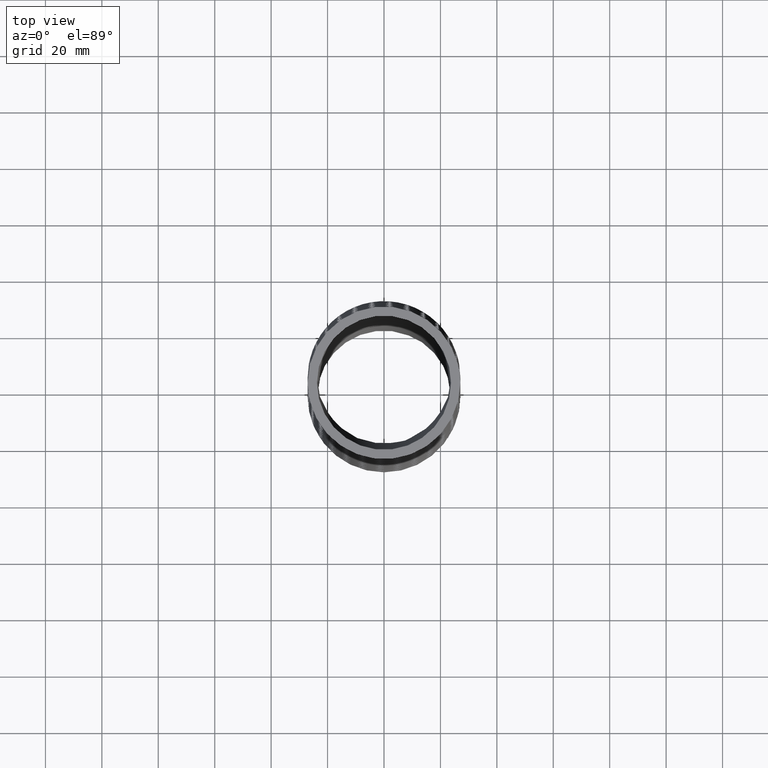
[diagram: clean part render]
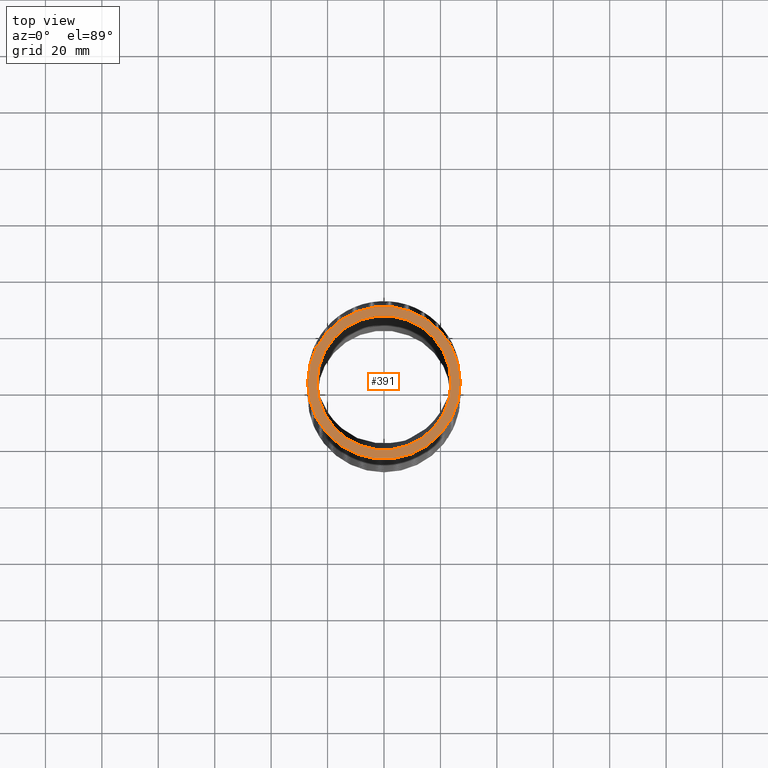
[diagram: same view with one face highlighted and labeled with its STEP entity id]
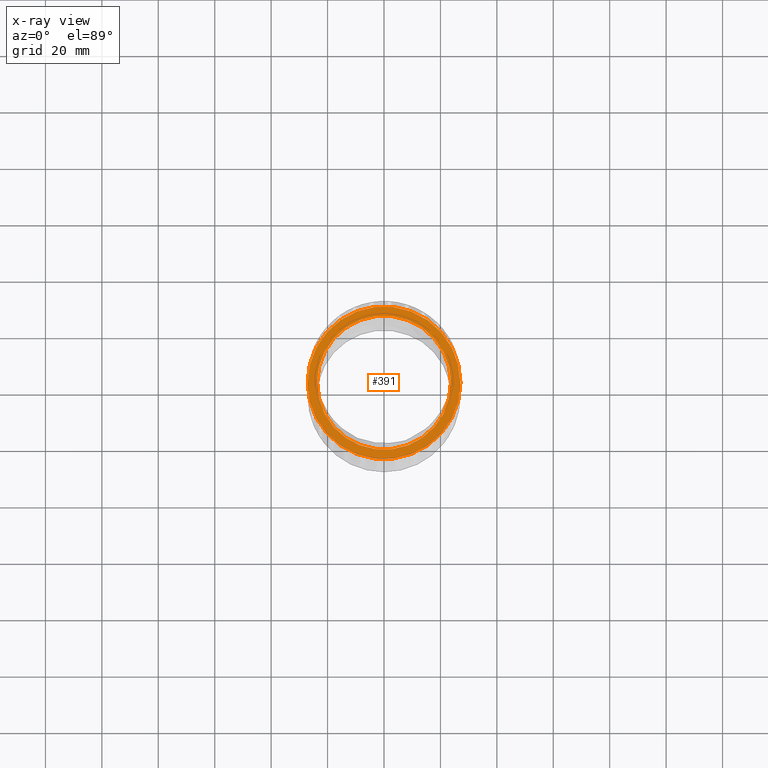
[diagram: x-ray of the same camera — body ghosted, the highlighted face saturated]
A machine part, top view. The second image highlights one B-rep face of the part: STEP entity #391.
The next image is the same camera in x-ray: the body ghosted, the highlighted face saturated — about 0% of this face is hidden behind the body in this view.
In plain terms, the highlighted planar face has unit normal (0, 0, 1).
Its self-contained STEP definition (entity closure, byte-faithful):
#311 = EDGE_CURVE ( 'NONE', #7298, #7072, #4555, .T. ) ;
#375 = ORIENTED_EDGE ( 'NONE', *, *, #311, .T. ) ;
#377 = ORIENTED_EDGE ( 'NONE', *, *, #7073, .T. ) ;
#381 = EDGE_CURVE ( 'NONE', #7106, #7103, #5275, .T. ) ;
#382 = ORIENTED_EDGE ( 'NONE', *, *, #7098, .F. ) ;
#384 = ORIENTED_EDGE ( 'NONE', *, *, #381, .F. ) ;
#385 = EDGE_LOOP ( 'NONE', ( #382, #384 ) ) ;
#386 = EDGE_LOOP ( 'NONE', ( #375, #377 ) ) ;
#391 = ADVANCED_FACE ( 'NONE', ( #5369, #5368 ), #5428, .T. ) ;
#4509 = CARTESIAN_POINT ( 'NONE',  ( 0.0000000000000000000, 0.0000000000000000000, 0.0000000000000000000 ) ) ;
#4552 = DIRECTION ( 'NONE',  ( 1.000000000000000000, 0.0000000000000000000, 0.0000000000000000000 ) ) ;
#4553 = DIRECTION ( 'NONE',  ( 0.0000000000000000000, 0.0000000000000000000, 1.000000000000000000 ) ) ;
#4554 = AXIS2_PLACEMENT_3D ( 'NONE', #4509, #4553, #4552 ) ;
#4555 = CIRCLE ( 'NONE', #4554, 1.064999999999999900 ) ;
#5275 = CIRCLE ( 'NONE', #5286, 0.9350000000000001600 ) ;
#5283 = DIRECTION ( 'NONE',  ( 1.000000000000000000, 0.0000000000000000000, 0.0000000000000000000 ) ) ;
#5284 = DIRECTION ( 'NONE',  ( 0.0000000000000000000, 0.0000000000000000000, 1.000000000000000000 ) ) ;
#5285 = CARTESIAN_POINT ( 'NONE',  ( 0.0000000000000000000, 0.0000000000000000000, 0.0000000000000000000 ) ) ;
#5286 = AXIS2_PLACEMENT_3D ( 'NONE', #5285, #5284, #5283 ) ;
#5368 = FACE_OUTER_BOUND ( 'NONE', #386, .T. ) ;
#5369 = FACE_BOUND ( 'NONE', #385, .T. ) ;
#5424 = DIRECTION ( 'NONE',  ( 1.000000000000000000, 0.0000000000000000000, 0.0000000000000000000 ) ) ;
#5425 = DIRECTION ( 'NONE',  ( 0.0000000000000000000, 0.0000000000000000000, 1.000000000000000000 ) ) ;
#5426 = CARTESIAN_POINT ( 'NONE',  ( 0.0000000000000000000, 0.0000000000000000000, 0.0000000000000000000 ) ) ;
#5427 = AXIS2_PLACEMENT_3D ( 'NONE', #5426, #5425, #5424 ) ;
#5428 = PLANE ( 'NONE',  #5427 ) ;
#7072 = VERTEX_POINT ( 'NONE', #19507 ) ;
#7073 = EDGE_CURVE ( 'NONE', #7072, #7298, #19498, .T. ) ;
#7098 = EDGE_CURVE ( 'NONE', #7103, #7106, #19668, .T. ) ;
#7103 = VERTEX_POINT ( 'NONE', #19756 ) ;
#7106 = VERTEX_POINT ( 'NONE', #19755 ) ;
#7298 = VERTEX_POINT ( 'NONE', #20516 ) ;
#19494 = DIRECTION ( 'NONE',  ( 1.000000000000000000, 0.0000000000000000000, 0.0000000000000000000 ) ) ;
#19495 = DIRECTION ( 'NONE',  ( 0.0000000000000000000, 0.0000000000000000000, 1.000000000000000000 ) ) ;
#19496 = AXIS2_PLACEMENT_3D ( 'NONE', #19506, #19495, #19494 ) ;
#19498 = CIRCLE ( 'NONE', #19496, 1.064999999999999900 ) ;
#19506 = CARTESIAN_POINT ( 'NONE',  ( 0.0000000000000000000, 0.0000000000000000000, 0.0000000000000000000 ) ) ;
#19507 = CARTESIAN_POINT ( 'NONE',  ( -1.064999999999999900, 1.304248841091931100E-016, 0.0000000000000000000 ) ) ;
#19663 = DIRECTION ( 'NONE',  ( 1.000000000000000000, 0.0000000000000000000, 0.0000000000000000000 ) ) ;
#19664 = DIRECTION ( 'NONE',  ( 0.0000000000000000000, 0.0000000000000000000, 1.000000000000000000 ) ) ;
#19666 = CARTESIAN_POINT ( 'NONE',  ( 0.0000000000000000000, 0.0000000000000000000, 0.0000000000000000000 ) ) ;
#19667 = AXIS2_PLACEMENT_3D ( 'NONE', #19666, #19664, #19663 ) ;
#19668 = CIRCLE ( 'NONE', #19667, 0.9350000000000001600 ) ;
#19755 = CARTESIAN_POINT ( 'NONE',  ( -0.9350000000000001600, 1.145044757202775300E-016, 0.0000000000000000000 ) ) ;
#19756 = CARTESIAN_POINT ( 'NONE',  ( 0.9350000000000001600, 0.0000000000000000000, 0.0000000000000000000 ) ) ;
#20516 = CARTESIAN_POINT ( 'NONE',  ( 1.064999999999999900, 0.0000000000000000000, 0.0000000000000000000 ) ) ;